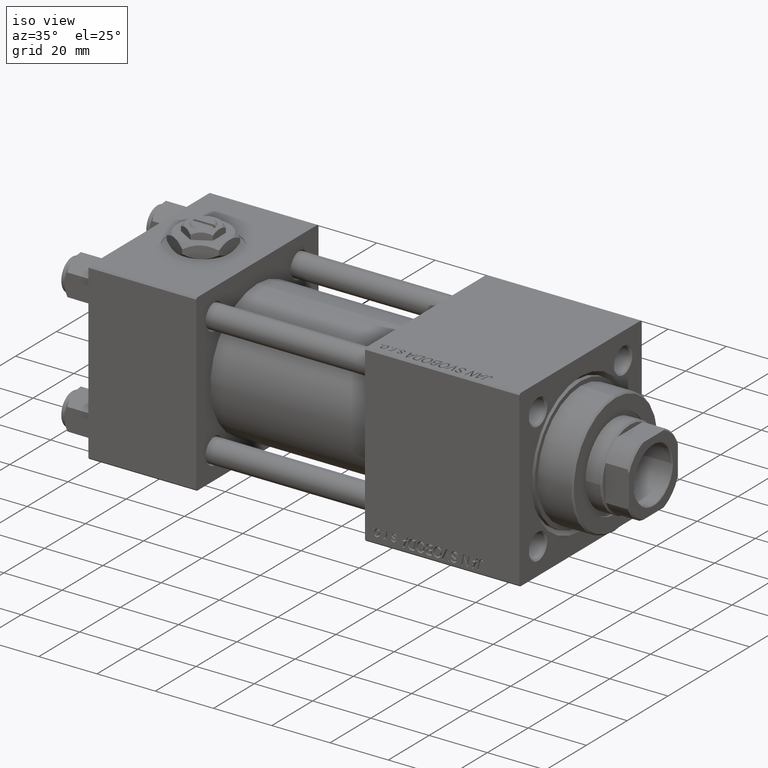
[diagram: clean part render]
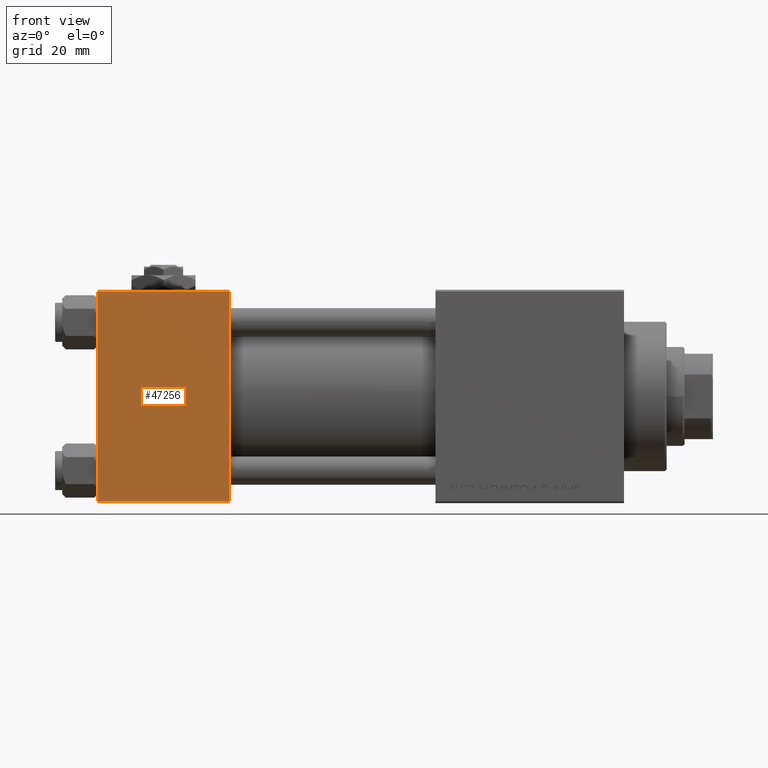
[diagram: tour spotlight — one face highlighted and labeled with its STEP entity id]
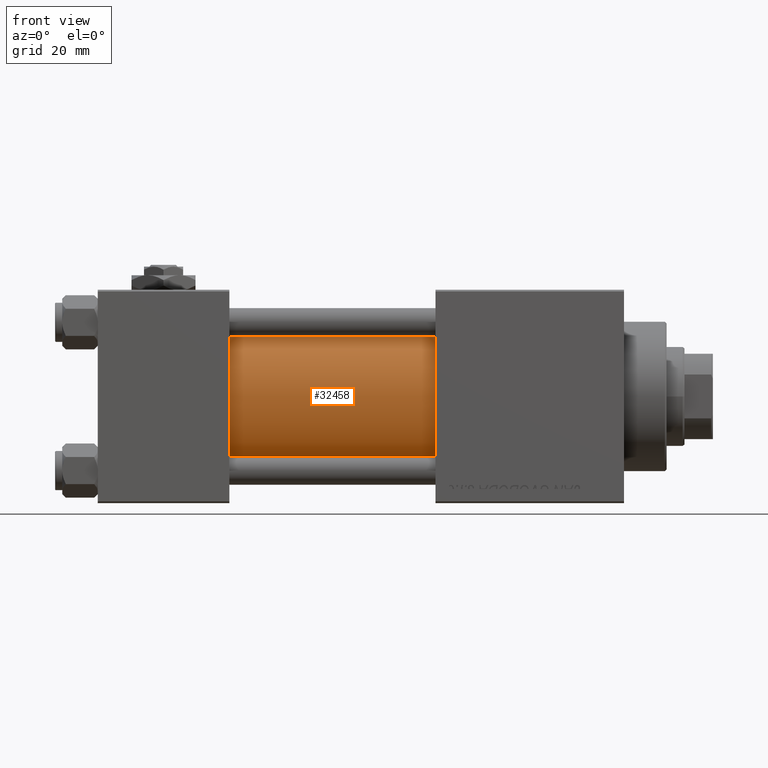
[diagram: tour spotlight — one face highlighted and labeled with its STEP entity id]
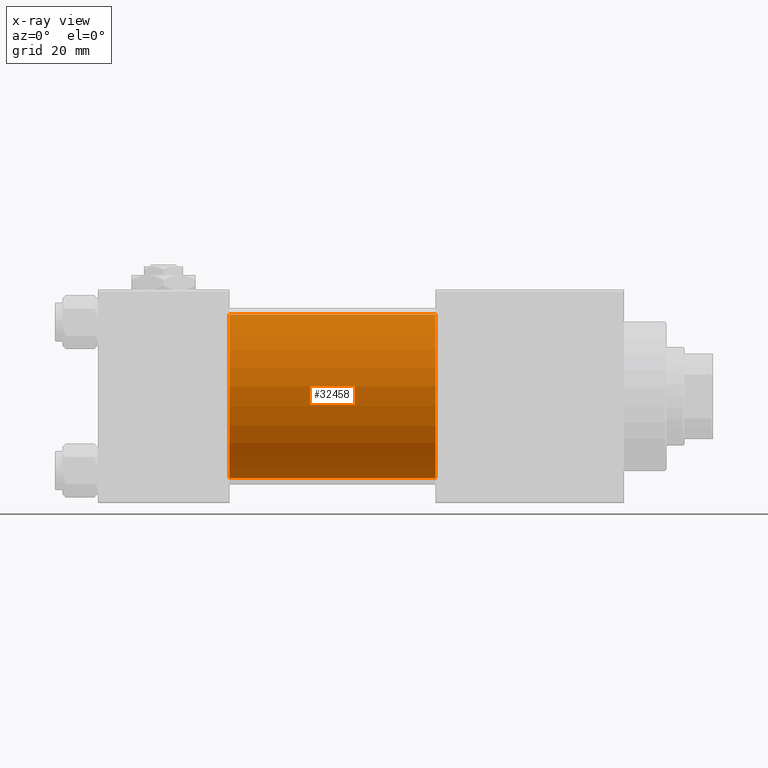
[diagram: x-ray of the same camera — body ghosted, this tour face saturated]
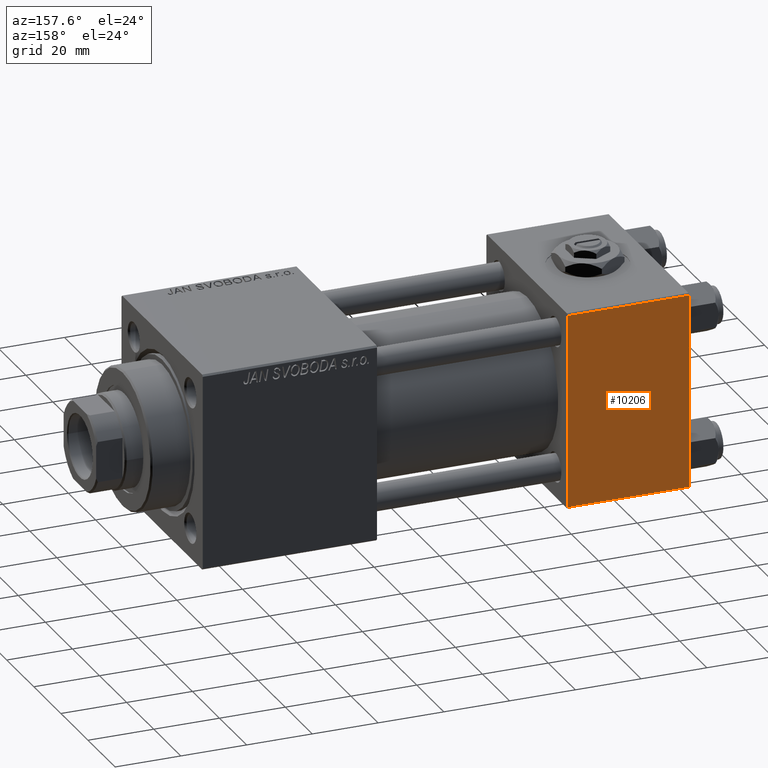
[diagram: tour spotlight — one face highlighted and labeled with its STEP entity id]
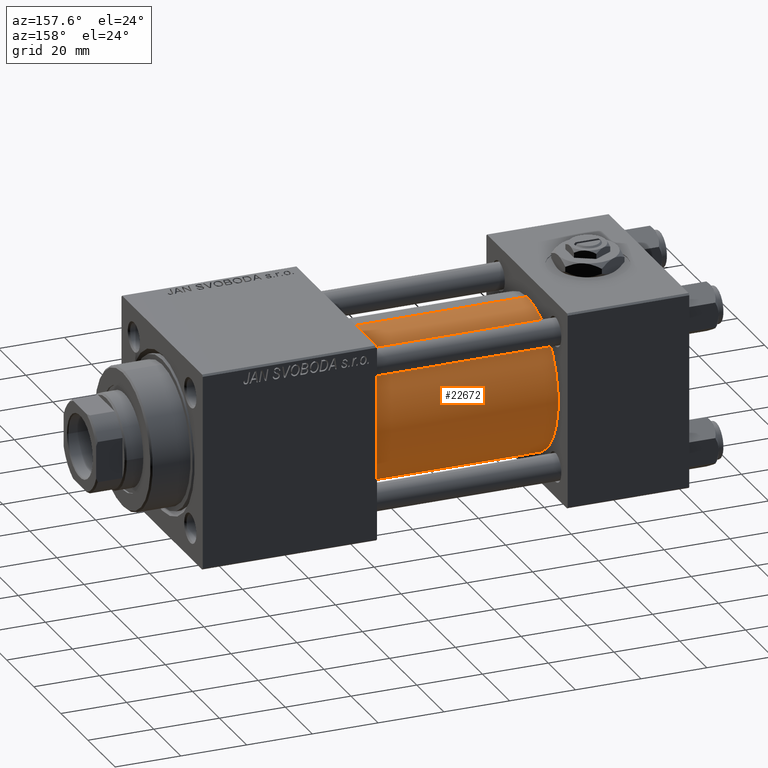
[diagram: tour spotlight — one face highlighted and labeled with its STEP entity id]
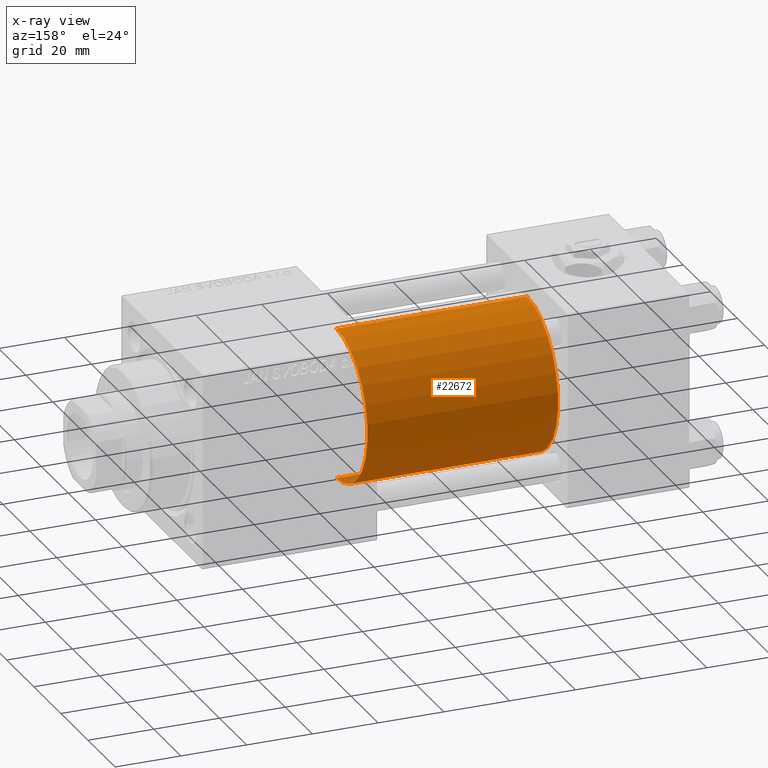
[diagram: x-ray of the same camera — body ghosted, this tour face saturated]
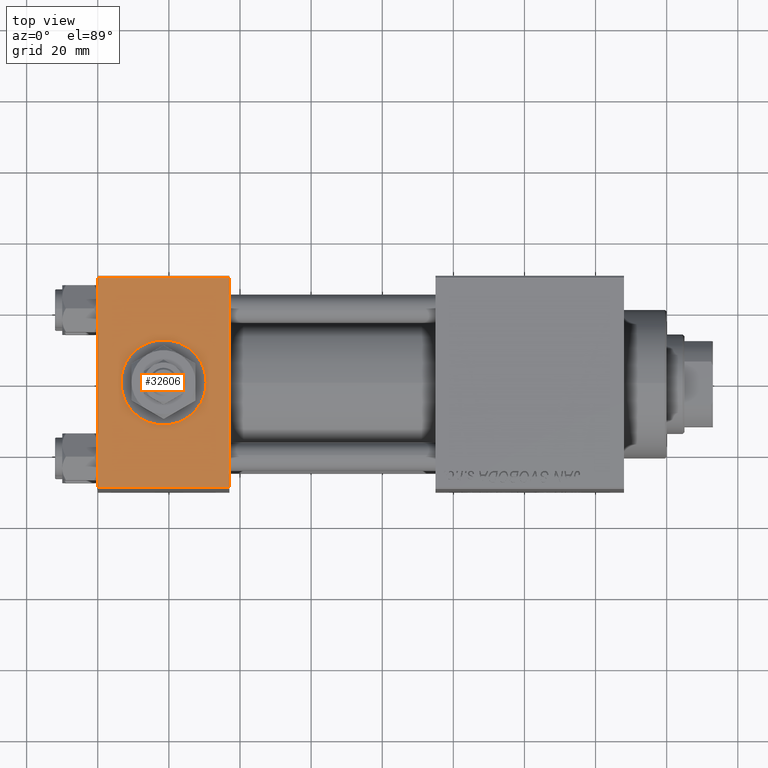
[diagram: tour spotlight — one face highlighted and labeled with its STEP entity id]
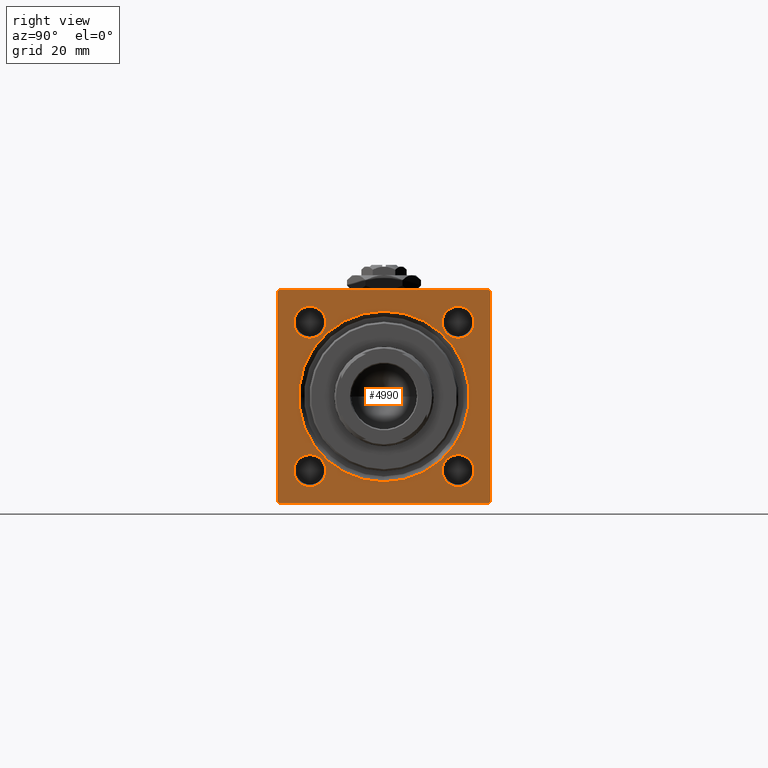
[diagram: tour spotlight — one face highlighted and labeled with its STEP entity id]
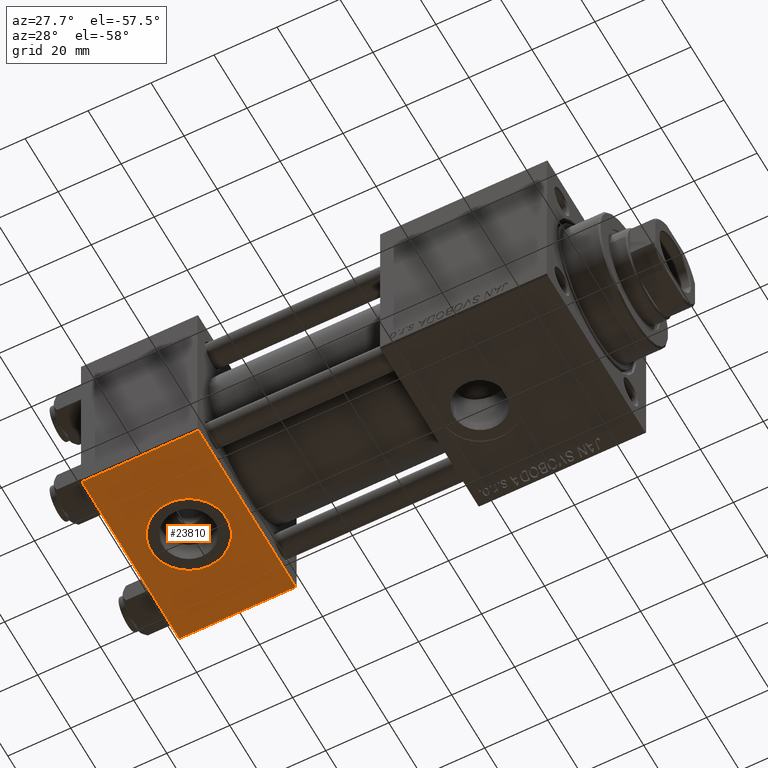
[diagram: tour spotlight — one face highlighted and labeled with its STEP entity id]
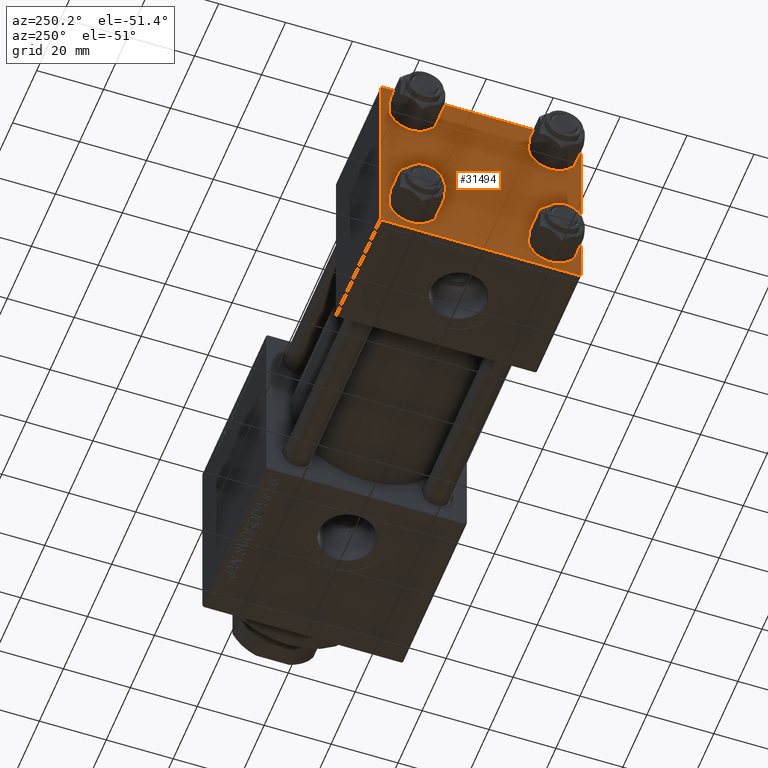
[diagram: tour spotlight — one face highlighted and labeled with its STEP entity id]
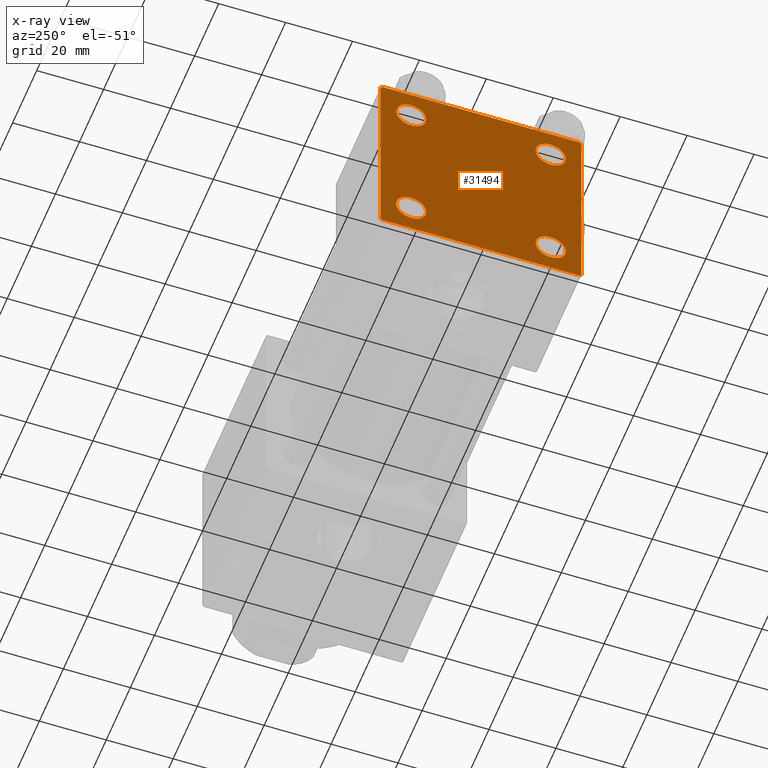
[diagram: x-ray of the same camera — body ghosted, this tour face saturated]
A machine part: a face-by-face anatomy tour. The part has 1202 B-rep faces; the first image is the clean iso view, then the 8 largest visible faces are spotlighted one at a time (largest first), each with its STEP entity span.

Face 1 — front view, entity #47256. In plain terms, the highlighted planar face has unit normal (0, 1, 0).
Definition (entity closure, byte-faithful):
#2697 = VERTEX_POINT ( 'NONE', #44715 ) ;
#3328 = VECTOR ( 'NONE', #31282, 1000.000000000000000 ) ;
#4673 = DIRECTION ( 'NONE',  ( -0.000000000000000000, 1.000000000000000000, 0.000000000000000000 ) ) ;
#4921 = CARTESIAN_POINT ( 'NONE',  ( 37.00000000000000000, -30.00000000000000000, 29.49999999999999289 ) ) ;
#6676 = DIRECTION ( 'NONE',  ( -1.000000000000000000, 0.000000000000000000, 0.000000000000000000 ) ) ;
#8243 = EDGE_CURVE ( 'NONE', #39329, #47542, #31789, .T. ) ;
#8879 = CARTESIAN_POINT ( 'NONE',  ( 37.00000000000000000, -30.00000000000000000, 29.99999999999999289 ) ) ;
#9349 = ORIENTED_EDGE ( 'NONE', *, *, #8243, .T. ) ;
#11387 = DIRECTION ( 'NONE',  ( 0.000000000000000000, 0.000000000000000000, -1.000000000000000000 ) ) ;
#14736 = CARTESIAN_POINT ( 'NONE',  ( 37.00000000000000000, -30.00000000000000000, -29.50000000000001776 ) ) ;
#15338 = CARTESIAN_POINT ( 'NONE',  ( 37.00000000000000000, -30.00000000000000000, 29.99999999999999289 ) ) ;
#15351 = CARTESIAN_POINT ( 'NONE',  ( 0.000000000000000000, -30.00000000000000000, 29.99999999999999289 ) ) ;
#15852 = LINE ( 'NONE', #15351, #33376 ) ;
#18084 = AXIS2_PLACEMENT_3D ( 'NONE', #8879, #4673, #25438 ) ;
#19032 = CARTESIAN_POINT ( 'NONE',  ( 37.00000000000000000, -30.00000000000000000, 29.49999999999999289 ) ) ;
#19642 = ORIENTED_EDGE ( 'NONE', *, *, #51426, .T. ) ;
#20986 = PLANE ( 'NONE',  #18084 ) ;
#23219 = EDGE_CURVE ( 'NONE', #45331, #47542, #35796, .T. ) ;
#25438 = DIRECTION ( 'NONE',  ( 0.000000000000000000, -0.000000000000000000, 1.000000000000000000 ) ) ;
#25693 = FACE_OUTER_BOUND ( 'NONE', #38151, .T. ) ;
#27651 = DIRECTION ( 'NONE',  ( 0.000000000000000000, 0.000000000000000000, -1.000000000000000000 ) ) ;
#28344 = CARTESIAN_POINT ( 'NONE',  ( 37.00000000000000000, -30.00000000000000000, -29.50000000000001776 ) ) ;
#28592 = CARTESIAN_POINT ( 'NONE',  ( 0.000000000000000000, -30.00000000000000000, -29.50000000000001776 ) ) ;
#31108 = LINE ( 'NONE', #19032, #51404 ) ;
#31282 = DIRECTION ( 'NONE',  ( 1.000000000000000000, 0.000000000000000000, 0.000000000000000000 ) ) ;
#31789 = LINE ( 'NONE', #28344, #3328 ) ;
#32348 = VECTOR ( 'NONE', #27651, 1000.000000000000000 ) ;
#33376 = VECTOR ( 'NONE', #11387, 1000.000000000000000 ) ;
#35796 = LINE ( 'NONE', #15338, #32348 ) ;
#38151 = EDGE_LOOP ( 'NONE', ( #19642, #9349, #42689, #41987 ) ) ;
#39329 = VERTEX_POINT ( 'NONE', #28592 ) ;
#41987 = ORIENTED_EDGE ( 'NONE', *, *, #43721, .T. ) ;
#42689 = ORIENTED_EDGE ( 'NONE', *, *, #23219, .F. ) ;
#43721 = EDGE_CURVE ( 'NONE', #45331, #2697, #31108, .T. ) ;
#44715 = CARTESIAN_POINT ( 'NONE',  ( 0.000000000000000000, -30.00000000000000000, 29.49999999999999289 ) ) ;
#45331 = VERTEX_POINT ( 'NONE', #4921 ) ;
#47256 = ADVANCED_FACE ( 'NONE', ( #25693 ), #20986, .F. ) ;
#47542 = VERTEX_POINT ( 'NONE', #14736 ) ;
#51404 = VECTOR ( 'NONE', #6676, 1000.000000000000000 ) ;
#51426 = EDGE_CURVE ( 'NONE', #2697, #39329, #15852, .T. ) ;

Face 2 — front view, entity #32458. An x-ray twin of the same camera follows (body ghosted, this face saturated) — the face is partly hidden behind the body. In plain terms, the highlighted cylindrical surface (partial cylindrical patch) has radius 23 mm, axis along (-1, -0, -0).
Definition (entity closure, byte-faithful):
#10 = CARTESIAN_POINT ( 'NONE',  ( 37.00000000000000000, -2.602085213965210642E-15, 23.00000000000000000 ) ) ;
#204 = DIRECTION ( 'NONE',  ( 0.000000000000000000, 0.000000000000000000, 1.000000000000000000 ) ) ;
#270 = CARTESIAN_POINT ( 'NONE',  ( 95.00000000000000000, -2.602085213965210642E-15, 0.000000000000000000 ) ) ;
#1052 = AXIS2_PLACEMENT_3D ( 'NONE', #270, #16315, #32324 ) ;
#3303 = EDGE_LOOP ( 'NONE', ( #32856, #15043, #27550, #34948 ) ) ;
#4272 = EDGE_CURVE ( 'NONE', #8535, #21367, #51133, .T. ) ;
#7165 = CARTESIAN_POINT ( 'NONE',  ( 37.00000000000000000, -2.602085213965210642E-15, 0.000000000000000000 ) ) ;
#8535 = VERTEX_POINT ( 'NONE', #10740 ) ;
#9974 = AXIS2_PLACEMENT_3D ( 'NONE', #7165, #11893, #44193 ) ;
#10393 = VERTEX_POINT ( 'NONE', #10 ) ;
#10740 = CARTESIAN_POINT ( 'NONE',  ( 95.00000000000000000, 2.146024240737012665E-16, -23.00000000000000000 ) ) ;
#11451 = CARTESIAN_POINT ( 'NONE',  ( 95.00000000000000000, 2.146024240737012665E-16, -23.00000000000000000 ) ) ;
#11893 = DIRECTION ( 'NONE',  ( 1.000000000000000000, -0.000000000000000000, 0.000000000000000000 ) ) ;
#14548 = EDGE_CURVE ( 'NONE', #37056, #10393, #24505, .T. ) ;
#15043 = ORIENTED_EDGE ( 'NONE', *, *, #44176, .F. ) ;
#16315 = DIRECTION ( 'NONE',  ( 1.000000000000000000, 0.000000000000000000, 0.000000000000000000 ) ) ;
#16495 = CYLINDRICAL_SURFACE ( 'NONE', #27658, 23.00000000000000000 ) ;
#16766 = CARTESIAN_POINT ( 'NONE',  ( 95.00000000000000000, -2.602085213965210642E-15, 0.000000000000000000 ) ) ;
#17486 = VECTOR ( 'NONE', #34853, 1000.000000000000000 ) ;
#20883 = CIRCLE ( 'NONE', #9974, 23.00000000000000000 ) ;
#21367 = VERTEX_POINT ( 'NONE', #46652 ) ;
#24505 = LINE ( 'NONE', #36051, #36955 ) ;
#27550 = ORIENTED_EDGE ( 'NONE', *, *, #14548, .T. ) ;
#27658 = AXIS2_PLACEMENT_3D ( 'NONE', #16766, #45122, #204 ) ;
#28302 = FACE_OUTER_BOUND ( 'NONE', #3303, .T. ) ;
#31144 = EDGE_CURVE ( 'NONE', #10393, #21367, #20883, .T. ) ;
#32324 = DIRECTION ( 'NONE',  ( 0.000000000000000000, 0.000000000000000000, -1.000000000000000000 ) ) ;
#32458 = ADVANCED_FACE ( 'NONE', ( #28302 ), #16495, .T. ) ;
#32856 = ORIENTED_EDGE ( 'NONE', *, *, #4272, .F. ) ;
#34853 = DIRECTION ( 'NONE',  ( -1.000000000000000000, -0.000000000000000000, -0.000000000000000000 ) ) ;
#34948 = ORIENTED_EDGE ( 'NONE', *, *, #31144, .T. ) ;
#36051 = CARTESIAN_POINT ( 'NONE',  ( 95.00000000000000000, -2.602085213965210642E-15, 23.00000000000000000 ) ) ;
#36955 = VECTOR ( 'NONE', #44196, 1000.000000000000000 ) ;
#37056 = VERTEX_POINT ( 'NONE', #50220 ) ;
#44176 = EDGE_CURVE ( 'NONE', #37056, #8535, #45545, .T. ) ;
#44193 = DIRECTION ( 'NONE',  ( 0.000000000000000000, 0.000000000000000000, 1.000000000000000000 ) ) ;
#44196 = DIRECTION ( 'NONE',  ( -1.000000000000000000, -0.000000000000000000, -0.000000000000000000 ) ) ;
#45122 = DIRECTION ( 'NONE',  ( -1.000000000000000000, -0.000000000000000000, -0.000000000000000000 ) ) ;
#45545 = CIRCLE ( 'NONE', #1052, 23.00000000000000000 ) ;
#46652 = CARTESIAN_POINT ( 'NONE',  ( 37.00000000000000000, 2.146024240737012665E-16, -23.00000000000000000 ) ) ;
#50220 = CARTESIAN_POINT ( 'NONE',  ( 95.00000000000000000, -2.602085213965210642E-15, 23.00000000000000000 ) ) ;
#51133 = LINE ( 'NONE', #11451, #17486 ) ;

Face 3 — auxiliary view, entity #10206. In plain terms, the highlighted planar face has unit normal (0, 1, 0).
Definition (entity closure, byte-faithful):
#1888 = FACE_OUTER_BOUND ( 'NONE', #19308, .T. ) ;
#2144 = DIRECTION ( 'NONE',  ( -0.000000000000000000, 1.000000000000000000, 0.000000000000000000 ) ) ;
#3708 = VERTEX_POINT ( 'NONE', #18961 ) ;
#4441 = CARTESIAN_POINT ( 'NONE',  ( 37.00000000000000000, 29.99999999999999289, 30.00000000000000000 ) ) ;
#8498 = VERTEX_POINT ( 'NONE', #42277 ) ;
#9741 = VECTOR ( 'NONE', #37808, 1000.000000000000000 ) ;
#9892 = VECTOR ( 'NONE', #47361, 1000.000000000000000 ) ;
#10130 = AXIS2_PLACEMENT_3D ( 'NONE', #41839, #2144, #13981 ) ;
#10206 = ADVANCED_FACE ( 'NONE', ( #1888 ), #13469, .T. ) ;
#12780 = CARTESIAN_POINT ( 'NONE',  ( 37.00000000000000000, 29.99999999999999289, -29.50000000000000000 ) ) ;
#13469 = PLANE ( 'NONE',  #10130 ) ;
#13810 = ORIENTED_EDGE ( 'NONE', *, *, #24584, .T. ) ;
#13981 = DIRECTION ( 'NONE',  ( 0.000000000000000000, -0.000000000000000000, 1.000000000000000000 ) ) ;
#16570 = ORIENTED_EDGE ( 'NONE', *, *, #28363, .F. ) ;
#16901 = EDGE_CURVE ( 'NONE', #33563, #8498, #33239, .T. ) ;
#16985 = DIRECTION ( 'NONE',  ( -1.000000000000000000, 0.000000000000000000, 0.000000000000000000 ) ) ;
#17778 = VECTOR ( 'NONE', #16985, 1000.000000000000000 ) ;
#18961 = CARTESIAN_POINT ( 'NONE',  ( 0.000000000000000000, 29.99999999999999289, 29.50000000000000000 ) ) ;
#19308 = EDGE_LOOP ( 'NONE', ( #29512, #39197, #16570, #13810 ) ) ;
#21907 = CARTESIAN_POINT ( 'NONE',  ( 0.000000000000000000, 29.99999999999999289, 30.00000000000000000 ) ) ;
#24584 = EDGE_CURVE ( 'NONE', #3708, #34859, #50424, .T. ) ;
#27131 = LINE ( 'NONE', #21907, #9892 ) ;
#28363 = EDGE_CURVE ( 'NONE', #3708, #8498, #27131, .T. ) ;
#29512 = ORIENTED_EDGE ( 'NONE', *, *, #41549, .T. ) ;
#30368 = VECTOR ( 'NONE', #40698, 1000.000000000000000 ) ;
#33239 = LINE ( 'NONE', #12780, #17778 ) ;
#33563 = VERTEX_POINT ( 'NONE', #49535 ) ;
#34859 = VERTEX_POINT ( 'NONE', #41859 ) ;
#37808 = DIRECTION ( 'NONE',  ( 1.000000000000000000, 0.000000000000000000, 0.000000000000000000 ) ) ;
#39197 = ORIENTED_EDGE ( 'NONE', *, *, #16901, .T. ) ;
#40698 = DIRECTION ( 'NONE',  ( 0.000000000000000000, 0.000000000000000000, -1.000000000000000000 ) ) ;
#41549 = EDGE_CURVE ( 'NONE', #34859, #33563, #44383, .T. ) ;
#41839 = CARTESIAN_POINT ( 'NONE',  ( 37.00000000000000000, 29.99999999999999289, 30.00000000000000000 ) ) ;
#41859 = CARTESIAN_POINT ( 'NONE',  ( 37.00000000000000000, 29.99999999999999289, 29.50000000000000000 ) ) ;
#42277 = CARTESIAN_POINT ( 'NONE',  ( 0.000000000000000000, 29.99999999999999289, -29.50000000000000000 ) ) ;
#42285 = CARTESIAN_POINT ( 'NONE',  ( 37.00000000000000000, 29.99999999999999289, 29.50000000000000000 ) ) ;
#44383 = LINE ( 'NONE', #4441, #30368 ) ;
#47361 = DIRECTION ( 'NONE',  ( 0.000000000000000000, 0.000000000000000000, -1.000000000000000000 ) ) ;
#49535 = CARTESIAN_POINT ( 'NONE',  ( 37.00000000000000000, 29.99999999999999289, -29.50000000000000000 ) ) ;
#50424 = LINE ( 'NONE', #42285, #9741 ) ;

Face 4 — auxiliary view, entity #22672. An x-ray twin of the same camera follows (body ghosted, this face saturated) — the face is partly hidden behind the body. In plain terms, the highlighted cylindrical surface (partial cylindrical patch) has radius 23 mm, axis along (-1, -0, -0).
Definition (entity closure, byte-faithful):
#10 = CARTESIAN_POINT ( 'NONE',  ( 37.00000000000000000, -2.602085213965210642E-15, 23.00000000000000000 ) ) ;
#1264 = CYLINDRICAL_SURFACE ( 'NONE', #16501, 23.00000000000000000 ) ;
#4272 = EDGE_CURVE ( 'NONE', #8535, #21367, #51133, .T. ) ;
#4637 = DIRECTION ( 'NONE',  ( 1.000000000000000000, 0.000000000000000000, 0.000000000000000000 ) ) ;
#8535 = VERTEX_POINT ( 'NONE', #10740 ) ;
#10393 = VERTEX_POINT ( 'NONE', #10 ) ;
#10740 = CARTESIAN_POINT ( 'NONE',  ( 95.00000000000000000, 2.146024240737012665E-16, -23.00000000000000000 ) ) ;
#11451 = CARTESIAN_POINT ( 'NONE',  ( 95.00000000000000000, 2.146024240737012665E-16, -23.00000000000000000 ) ) ;
#11842 = CIRCLE ( 'NONE', #18569, 23.00000000000000000 ) ;
#12534 = ORIENTED_EDGE ( 'NONE', *, *, #42716, .F. ) ;
#13468 = ORIENTED_EDGE ( 'NONE', *, *, #39580, .T. ) ;
#14548 = EDGE_CURVE ( 'NONE', #37056, #10393, #24505, .T. ) ;
#16228 = CARTESIAN_POINT ( 'NONE',  ( 95.00000000000000000, -2.602085213965210642E-15, 0.000000000000000000 ) ) ;
#16501 = AXIS2_PLACEMENT_3D ( 'NONE', #32556, #20737, #33068 ) ;
#16782 = EDGE_LOOP ( 'NONE', ( #12534, #42515, #13468, #42737 ) ) ;
#17316 = FACE_OUTER_BOUND ( 'NONE', #16782, .T. ) ;
#17486 = VECTOR ( 'NONE', #34853, 1000.000000000000000 ) ;
#18569 = AXIS2_PLACEMENT_3D ( 'NONE', #39077, #19885, #19635 ) ;
#19635 = DIRECTION ( 'NONE',  ( 0.000000000000000000, 0.000000000000000000, 1.000000000000000000 ) ) ;
#19885 = DIRECTION ( 'NONE',  ( 1.000000000000000000, -0.000000000000000000, 0.000000000000000000 ) ) ;
#20737 = DIRECTION ( 'NONE',  ( -1.000000000000000000, -0.000000000000000000, -0.000000000000000000 ) ) ;
#21367 = VERTEX_POINT ( 'NONE', #46652 ) ;
#22672 = ADVANCED_FACE ( 'NONE', ( #17316 ), #1264, .T. ) ;
#23708 = AXIS2_PLACEMENT_3D ( 'NONE', #16228, #4637, #40392 ) ;
#24505 = LINE ( 'NONE', #36051, #36955 ) ;
#32556 = CARTESIAN_POINT ( 'NONE',  ( 95.00000000000000000, -2.602085213965210642E-15, 0.000000000000000000 ) ) ;
#33068 = DIRECTION ( 'NONE',  ( 0.000000000000000000, 0.000000000000000000, 1.000000000000000000 ) ) ;
#34853 = DIRECTION ( 'NONE',  ( -1.000000000000000000, -0.000000000000000000, -0.000000000000000000 ) ) ;
#36051 = CARTESIAN_POINT ( 'NONE',  ( 95.00000000000000000, -2.602085213965210642E-15, 23.00000000000000000 ) ) ;
#36955 = VECTOR ( 'NONE', #44196, 1000.000000000000000 ) ;
#37056 = VERTEX_POINT ( 'NONE', #50220 ) ;
#39077 = CARTESIAN_POINT ( 'NONE',  ( 37.00000000000000000, -2.602085213965210642E-15, 0.000000000000000000 ) ) ;
#39580 = EDGE_CURVE ( 'NONE', #21367, #10393, #11842, .T. ) ;
#40392 = DIRECTION ( 'NONE',  ( 0.000000000000000000, 0.000000000000000000, -1.000000000000000000 ) ) ;
#42515 = ORIENTED_EDGE ( 'NONE', *, *, #4272, .T. ) ;
#42716 = EDGE_CURVE ( 'NONE', #8535, #37056, #46349, .T. ) ;
#42737 = ORIENTED_EDGE ( 'NONE', *, *, #14548, .F. ) ;
#44196 = DIRECTION ( 'NONE',  ( -1.000000000000000000, -0.000000000000000000, -0.000000000000000000 ) ) ;
#46349 = CIRCLE ( 'NONE', #23708, 23.00000000000000000 ) ;
#46652 = CARTESIAN_POINT ( 'NONE',  ( 37.00000000000000000, 2.146024240737012665E-16, -23.00000000000000000 ) ) ;
#50220 = CARTESIAN_POINT ( 'NONE',  ( 95.00000000000000000, -2.602085213965210642E-15, 23.00000000000000000 ) ) ;
#51133 = LINE ( 'NONE', #11451, #17486 ) ;

Face 5 — top view, entity #32606. In plain terms, the highlighted planar face has unit normal (0, 0, -1).
Definition (entity closure, byte-faithful):
#323 = VERTEX_POINT ( 'NONE', #13905 ) ;
#3271 = EDGE_CURVE ( 'NONE', #323, #20373, #7813, .T. ) ;
#3861 = CARTESIAN_POINT ( 'NONE',  ( 37.00000000000000000, -29.50000000000000000, 29.99999999999999289 ) ) ;
#5090 = DIRECTION ( 'NONE',  ( 0.000000000000000000, 0.000000000000000000, 1.000000000000000000 ) ) ;
#5511 = DIRECTION ( 'NONE',  ( -1.000000000000000000, 0.000000000000000000, 0.000000000000000000 ) ) ;
#5994 = VECTOR ( 'NONE', #13666, 1000.000000000000000 ) ;
#7813 = LINE ( 'NONE', #3861, #29169 ) ;
#9829 = DIRECTION ( 'NONE',  ( 1.000000000000000000, 0.000000000000000000, 0.000000000000000000 ) ) ;
#10569 = ORIENTED_EDGE ( 'NONE', *, *, #51218, .F. ) ;
#10608 = DIRECTION ( 'NONE',  ( 0.000000000000000000, -1.000000000000000000, -1.156482317317871725E-16 ) ) ;
#11530 = VERTEX_POINT ( 'NONE', #25139 ) ;
#12778 = EDGE_CURVE ( 'NONE', #47284, #20373, #14565, .T. ) ;
#13507 = DIRECTION ( 'NONE',  ( 1.000000000000000000, 0.000000000000000000, 0.000000000000000000 ) ) ;
#13666 = DIRECTION ( 'NONE',  ( 0.000000000000000000, -1.000000000000000000, -1.156482317317871725E-16 ) ) ;
#13905 = CARTESIAN_POINT ( 'NONE',  ( 0.000000000000000000, -29.49999999999998579, 29.99999999999999289 ) ) ;
#14253 = ORIENTED_EDGE ( 'NONE', *, *, #15890, .T. ) ;
#14565 = LINE ( 'NONE', #30580, #50519 ) ;
#15890 = EDGE_CURVE ( 'NONE', #11530, #323, #33093, .T. ) ;
#16185 = PLANE ( 'NONE',  #51152 ) ;
#16670 = CARTESIAN_POINT ( 'NONE',  ( 18.50000000000000000, -3.469446951953614978E-15, 29.99999999999999645 ) ) ;
#17044 = CARTESIAN_POINT ( 'NONE',  ( 37.00000000000000000, 29.49999999999999289, 30.00000000000000000 ) ) ;
#19958 = AXIS2_PLACEMENT_3D ( 'NONE', #49244, #29013, #9829 ) ;
#20373 = VERTEX_POINT ( 'NONE', #36935 ) ;
#21571 = EDGE_CURVE ( 'NONE', #45601, #38941, #50851, .T. ) ;
#22141 = EDGE_LOOP ( 'NONE', ( #14253, #24503, #33690, #34028 ) ) ;
#24503 = ORIENTED_EDGE ( 'NONE', *, *, #3271, .T. ) ;
#25139 = CARTESIAN_POINT ( 'NONE',  ( 0.000000000000000000, 29.49999999999999289, 30.00000000000000000 ) ) ;
#25634 = ORIENTED_EDGE ( 'NONE', *, *, #21571, .F. ) ;
#26758 = DIRECTION ( 'NONE',  ( 1.000000000000000000, 0.000000000000000000, 0.000000000000000000 ) ) ;
#27106 = VECTOR ( 'NONE', #5511, 1000.000000000000000 ) ;
#28386 = EDGE_LOOP ( 'NONE', ( #10569, #25634 ) ) ;
#28772 = FACE_BOUND ( 'NONE', #28386, .T. ) ;
#29013 = DIRECTION ( 'NONE',  ( 0.000000000000000000, 0.000000000000000000, 1.000000000000000000 ) ) ;
#29169 = VECTOR ( 'NONE', #26758, 1000.000000000000000 ) ;
#30580 = CARTESIAN_POINT ( 'NONE',  ( 37.00000000000000000, 29.99999999999999289, 30.00000000000000000 ) ) ;
#32606 = ADVANCED_FACE ( 'NONE', ( #28772, #40343 ), #16185, .F. ) ;
#33093 = LINE ( 'NONE', #42302, #5994 ) ;
#33361 = CARTESIAN_POINT ( 'NONE',  ( 30.50000000000000000, -3.469446951953614978E-15, 29.99999999999999645 ) ) ;
#33690 = ORIENTED_EDGE ( 'NONE', *, *, #12778, .F. ) ;
#34028 = ORIENTED_EDGE ( 'NONE', *, *, #44327, .T. ) ;
#36738 = CIRCLE ( 'NONE', #19958, 12.00000000000000000 ) ;
#36935 = CARTESIAN_POINT ( 'NONE',  ( 37.00000000000000000, -29.49999999999998579, 29.99999999999999289 ) ) ;
#37556 = LINE ( 'NONE', #45197, #27106 ) ;
#38941 = VERTEX_POINT ( 'NONE', #33361 ) ;
#40077 = DIRECTION ( 'NONE',  ( 0.000000000000000000, 1.000000000000000000, 1.156482317317871725E-16 ) ) ;
#40343 = FACE_OUTER_BOUND ( 'NONE', #22141, .T. ) ;
#42302 = CARTESIAN_POINT ( 'NONE',  ( 0.000000000000000000, 29.99999999999999289, 30.00000000000000000 ) ) ;
#43010 = CARTESIAN_POINT ( 'NONE',  ( 6.499999999999997335, -1.999870792976790833E-15, 29.99999999999999645 ) ) ;
#44327 = EDGE_CURVE ( 'NONE', #47284, #11530, #37556, .T. ) ;
#45197 = CARTESIAN_POINT ( 'NONE',  ( 0.000000000000000000, 29.49999999999999289, 30.00000000000000000 ) ) ;
#45601 = VERTEX_POINT ( 'NONE', #43010 ) ;
#46695 = AXIS2_PLACEMENT_3D ( 'NONE', #16670, #5090, #13507 ) ;
#47284 = VERTEX_POINT ( 'NONE', #17044 ) ;
#47974 = CARTESIAN_POINT ( 'NONE',  ( 37.00000000000000000, 29.99999999999999289, 30.00000000000000000 ) ) ;
#48480 = DIRECTION ( 'NONE',  ( 0.000000000000000000, 1.156482317317871725E-16, -1.000000000000000000 ) ) ;
#49244 = CARTESIAN_POINT ( 'NONE',  ( 18.50000000000000000, -3.469446951953614978E-15, 29.99999999999999645 ) ) ;
#50519 = VECTOR ( 'NONE', #10608, 1000.000000000000000 ) ;
#50851 = CIRCLE ( 'NONE', #46695, 12.00000000000000000 ) ;
#51152 = AXIS2_PLACEMENT_3D ( 'NONE', #47974, #48480, #40077 ) ;
#51218 = EDGE_CURVE ( 'NONE', #38941, #45601, #36738, .T. ) ;

Face 6 — right view, entity #4990. In plain terms, the highlighted planar face has unit normal (-1, 0, 0).
Definition (entity closure, byte-faithful):
#394 = CARTESIAN_POINT ( 'NONE',  ( 148.0000000000000000, 29.50000000000000000, -29.99999999999999289 ) ) ;
#400 = CARTESIAN_POINT ( 'NONE',  ( 148.0000000000000000, 30.00000000000000000, 29.50000000000000000 ) ) ;
#1325 = CIRCLE ( 'NONE', #37406, 4.500000000000017764 ) ;
#1987 = VECTOR ( 'NONE', #42850, 1000.000000000000000 ) ;
#2019 = CARTESIAN_POINT ( 'NONE',  ( 148.0000000000000000, -20.85000000000000142, -16.34999999999998366 ) ) ;
#2108 = DIRECTION ( 'NONE',  ( 0.000000000000000000, 0.000000000000000000, 1.000000000000000000 ) ) ;
#2255 = CARTESIAN_POINT ( 'NONE',  ( 148.0000000000000000, -20.84999999999999432, 16.34999999999998366 ) ) ;
#2894 = CARTESIAN_POINT ( 'NONE',  ( 148.0000000000000000, -30.00000000000000000, 29.99999999999999289 ) ) ;
#3234 = CARTESIAN_POINT ( 'NONE',  ( 148.0000000000000000, -20.84999999999999432, 20.85000000000000142 ) ) ;
#3436 = EDGE_CURVE ( 'NONE', #20534, #8976, #48442, .T. ) ;
#3653 = CIRCLE ( 'NONE', #39735, 4.500000000000017764 ) ;
#4248 = CIRCLE ( 'NONE', #37787, 4.500000000000017764 ) ;
#4885 = LINE ( 'NONE', #5672, #25650 ) ;
#4990 = ADVANCED_FACE ( 'NONE', ( #13084, #12298, #32778, #28836, #45126, #12570 ), #24656, .F. ) ;
#5400 = EDGE_LOOP ( 'NONE', ( #32850, #17895 ) ) ;
#5407 = DIRECTION ( 'NONE',  ( 0.000000000000000000, -1.000000000000000000, -1.156482317317871478E-16 ) ) ;
#5571 = VECTOR ( 'NONE', #41691, 1000.000000000000114 ) ;
#5573 = EDGE_CURVE ( 'NONE', #12320, #45464, #49394, .T. ) ;
#5625 = CARTESIAN_POINT ( 'NONE',  ( 148.0000000000000000, -29.50000000000000000, 29.99999999999999289 ) ) ;
#5672 = CARTESIAN_POINT ( 'NONE',  ( 148.0000000000000000, 30.00000000000000000, 30.00000000000000000 ) ) ;
#6678 = DIRECTION ( 'NONE',  ( -1.000000000000000000, 0.000000000000000000, -0.000000000000000000 ) ) ;
#7712 = AXIS2_PLACEMENT_3D ( 'NONE', #15357, #6678, #47646 ) ;
#7756 = VERTEX_POINT ( 'NONE', #44130 ) ;
#7832 = EDGE_CURVE ( 'NONE', #27103, #46036, #8910, .T. ) ;
#8910 = LINE ( 'NONE', #24950, #31830 ) ;
#8932 = ORIENTED_EDGE ( 'NONE', *, *, #46592, .T. ) ;
#8976 = VERTEX_POINT ( 'NONE', #2255 ) ;
#8996 = CARTESIAN_POINT ( 'NONE',  ( 148.0000000000000000, -29.50000000000000000, -30.00000000000000000 ) ) ;
#9133 = DIRECTION ( 'NONE',  ( -0.000000000000000000, 0.000000000000000000, 1.000000000000000000 ) ) ;
#9212 = AXIS2_PLACEMENT_3D ( 'NONE', #31088, #43171, #50792 ) ;
#9981 = AXIS2_PLACEMENT_3D ( 'NONE', #26666, #26161, #18802 ) ;
#10902 = CARTESIAN_POINT ( 'NONE',  ( 148.0000000000000000, 20.84999999999999787, -20.85000000000000142 ) ) ;
#11034 = ORIENTED_EDGE ( 'NONE', *, *, #47235, .T. ) ;
#11744 = EDGE_LOOP ( 'NONE', ( #46201, #35967 ) ) ;
#11882 = CIRCLE ( 'NONE', #7712, 4.500000000000017764 ) ;
#12151 = DIRECTION ( 'NONE',  ( -1.000000000000000000, 0.000000000000000000, -0.000000000000000000 ) ) ;
#12298 = FACE_BOUND ( 'NONE', #43440, .T. ) ;
#12320 = VERTEX_POINT ( 'NONE', #25926 ) ;
#12570 = FACE_OUTER_BOUND ( 'NONE', #41377, .T. ) ;
#12733 = CARTESIAN_POINT ( 'NONE',  ( 148.0000000000000000, 0.000000000000000000, 0.000000000000000000 ) ) ;
#13084 = FACE_BOUND ( 'NONE', #11744, .T. ) ;
#13160 = VECTOR ( 'NONE', #22341, 1000.000000000000000 ) ;
#13349 = EDGE_CURVE ( 'NONE', #47385, #7756, #11882, .T. ) ;
#13611 = VECTOR ( 'NONE', #34034, 1000.000000000000114 ) ;
#15178 = VERTEX_POINT ( 'NONE', #5625 ) ;
#15357 = CARTESIAN_POINT ( 'NONE',  ( 148.0000000000000000, 20.84999999999999787, 20.85000000000000142 ) ) ;
#15386 = DIRECTION ( 'NONE',  ( 0.000000000000000000, 0.000000000000000000, 1.000000000000000000 ) ) ;
#15709 = CARTESIAN_POINT ( 'NONE',  ( 148.0000000000000000, 20.84999999999999787, -25.35000000000001918 ) ) ;
#16549 = DIRECTION ( 'NONE',  ( 0.000000000000000000, -1.000000000000000000, -1.156482317317871478E-16 ) ) ;
#17553 = EDGE_LOOP ( 'NONE', ( #50716, #47221 ) ) ;
#17895 = ORIENTED_EDGE ( 'NONE', *, *, #36642, .T. ) ;
#17937 = ORIENTED_EDGE ( 'NONE', *, *, #26464, .F. ) ;
#18016 = EDGE_CURVE ( 'NONE', #33558, #46813, #51104, .T. ) ;
#18023 = CARTESIAN_POINT ( 'NONE',  ( 148.0000000000000000, 29.50000000000000000, 30.00000000000000000 ) ) ;
#18533 = EDGE_CURVE ( 'NONE', #48892, #45319, #47547, .T. ) ;
#18802 = DIRECTION ( 'NONE',  ( 0.000000000000000000, 0.000000000000000000, 1.000000000000000000 ) ) ;
#20095 = DIRECTION ( 'NONE',  ( 0.000000000000000000, 0.000000000000000000, 1.000000000000000000 ) ) ;
#20352 = EDGE_CURVE ( 'NONE', #46813, #15178, #4885, .T. ) ;
#20534 = VERTEX_POINT ( 'NONE', #24027 ) ;
#20848 = AXIS2_PLACEMENT_3D ( 'NONE', #37231, #48813, #9133 ) ;
#21452 = CARTESIAN_POINT ( 'NONE',  ( 148.0000000000000000, -20.84999999999999432, 20.85000000000000142 ) ) ;
#21530 = CIRCLE ( 'NONE', #43353, 4.500000000000017764 ) ;
#21719 = DIRECTION ( 'NONE',  ( -1.000000000000000000, 0.000000000000000000, -0.000000000000000000 ) ) ;
#21754 = EDGE_CURVE ( 'NONE', #8976, #20534, #1325, .T. ) ;
#22023 = EDGE_CURVE ( 'NONE', #45464, #12320, #21530, .T. ) ;
#22248 = LINE ( 'NONE', #38974, #5571 ) ;
#22341 = DIRECTION ( 'NONE',  ( 0.000000000000000000, 0.000000000000000000, -1.000000000000000000 ) ) ;
#23288 = VERTEX_POINT ( 'NONE', #29730 ) ;
#23481 = DIRECTION ( 'NONE',  ( 0.000000000000000000, 0.000000000000000000, 1.000000000000000000 ) ) ;
#23650 = CARTESIAN_POINT ( 'NONE',  ( 148.0000000000000000, 30.00000000000000000, -29.49999999999999289 ) ) ;
#24008 = VERTEX_POINT ( 'NONE', #35364 ) ;
#24027 = CARTESIAN_POINT ( 'NONE',  ( 148.0000000000000000, -20.84999999999999432, 25.35000000000001918 ) ) ;
#24461 = ORIENTED_EDGE ( 'NONE', *, *, #7832, .F. ) ;
#24656 = PLANE ( 'NONE',  #20848 ) ;
#24668 = LINE ( 'NONE', #23650, #25620 ) ;
#24726 = VERTEX_POINT ( 'NONE', #15709 ) ;
#24867 = EDGE_CURVE ( 'NONE', #45319, #46036, #22248, .T. ) ;
#24950 = CARTESIAN_POINT ( 'NONE',  ( 148.0000000000000000, 30.00000000000000000, -29.99999999999999289 ) ) ;
#25133 = DIRECTION ( 'NONE',  ( 0.000000000000000000, 0.000000000000000000, 1.000000000000000000 ) ) ;
#25620 = VECTOR ( 'NONE', #39654, 1000.000000000000114 ) ;
#25650 = VECTOR ( 'NONE', #5407, 1000.000000000000000 ) ;
#25926 = CARTESIAN_POINT ( 'NONE',  ( 148.0000000000000000, -20.85000000000000142, -25.35000000000001918 ) ) ;
#26161 = DIRECTION ( 'NONE',  ( -1.000000000000000000, 0.000000000000000000, -0.000000000000000000 ) ) ;
#26189 = ORIENTED_EDGE ( 'NONE', *, *, #21754, .T. ) ;
#26464 = EDGE_CURVE ( 'NONE', #33558, #32020, #41779, .T. ) ;
#26477 = AXIS2_PLACEMENT_3D ( 'NONE', #30752, #42578, #2108 ) ;
#26666 = CARTESIAN_POINT ( 'NONE',  ( 148.0000000000000000, -20.85000000000000142, -20.85000000000000142 ) ) ;
#27046 = VERTEX_POINT ( 'NONE', #48491 ) ;
#27103 = VERTEX_POINT ( 'NONE', #394 ) ;
#27176 = DIRECTION ( 'NONE',  ( 0.000000000000000000, 0.000000000000000000, 1.000000000000000000 ) ) ;
#27370 = CARTESIAN_POINT ( 'NONE',  ( 148.0000000000000000, 20.84999999999999787, 16.34999999999998366 ) ) ;
#28651 = ORIENTED_EDGE ( 'NONE', *, *, #24867, .T. ) ;
#28836 = FACE_BOUND ( 'NONE', #29032, .T. ) ;
#29032 = EDGE_LOOP ( 'NONE', ( #8932, #39191 ) ) ;
#29730 = CARTESIAN_POINT ( 'NONE',  ( 148.0000000000000000, 20.84999999999999787, -16.34999999999998366 ) ) ;
#30233 = ORIENTED_EDGE ( 'NONE', *, *, #18016, .T. ) ;
#30752 = CARTESIAN_POINT ( 'NONE',  ( 148.0000000000000000, 20.84999999999999787, -20.85000000000000142 ) ) ;
#31088 = CARTESIAN_POINT ( 'NONE',  ( 148.0000000000000000, 0.000000000000000000, 0.000000000000000000 ) ) ;
#31399 = DIRECTION ( 'NONE',  ( -1.000000000000000000, 0.000000000000000000, -0.000000000000000000 ) ) ;
#31624 = DIRECTION ( 'NONE',  ( -1.000000000000000000, 0.000000000000000000, -0.000000000000000000 ) ) ;
#31830 = VECTOR ( 'NONE', #16549, 1000.000000000000000 ) ;
#31858 = CIRCLE ( 'NONE', #9212, 24.00000000000003908 ) ;
#32020 = VERTEX_POINT ( 'NONE', #45040 ) ;
#32397 = CARTESIAN_POINT ( 'NONE',  ( 148.0000000000000000, 20.84999999999999787, 20.85000000000000142 ) ) ;
#32417 = DIRECTION ( 'NONE',  ( -1.000000000000000000, 0.000000000000000000, -0.000000000000000000 ) ) ;
#32778 = FACE_BOUND ( 'NONE', #17553, .T. ) ;
#32850 = ORIENTED_EDGE ( 'NONE', *, *, #36373, .T. ) ;
#33558 = VERTEX_POINT ( 'NONE', #400 ) ;
#34034 = DIRECTION ( 'NONE',  ( 0.000000000000000000, -0.7071067811865474617, 0.7071067811865474617 ) ) ;
#34748 = CARTESIAN_POINT ( 'NONE',  ( 148.0000000000000000, 29.50000000000000000, 30.00000000000000000 ) ) ;
#34774 = EDGE_CURVE ( 'NONE', #7756, #47385, #4248, .T. ) ;
#35364 = CARTESIAN_POINT ( 'NONE',  ( 148.0000000000000000, 2.939152317953652628E-15, 24.00000000000003908 ) ) ;
#35967 = ORIENTED_EDGE ( 'NONE', *, *, #34774, .T. ) ;
#36373 = EDGE_CURVE ( 'NONE', #27046, #24008, #41088, .T. ) ;
#36642 = EDGE_CURVE ( 'NONE', #24008, #27046, #31858, .T. ) ;
#36780 = CARTESIAN_POINT ( 'NONE',  ( 148.0000000000000000, -30.00000000000000000, 29.49999999999999289 ) ) ;
#37231 = CARTESIAN_POINT ( 'NONE',  ( 148.0000000000000000, 0.000000000000000000, 0.000000000000000000 ) ) ;
#37334 = CIRCLE ( 'NONE', #26477, 4.500000000000017764 ) ;
#37406 = AXIS2_PLACEMENT_3D ( 'NONE', #21452, #21719, #25133 ) ;
#37787 = AXIS2_PLACEMENT_3D ( 'NONE', #32397, #44495, #40552 ) ;
#38356 = ORIENTED_EDGE ( 'NONE', *, *, #3436, .T. ) ;
#38974 = CARTESIAN_POINT ( 'NONE',  ( 148.0000000000000000, -29.50000000000000000, -30.00000000000000000 ) ) ;
#39191 = ORIENTED_EDGE ( 'NONE', *, *, #47540, .T. ) ;
#39411 = AXIS2_PLACEMENT_3D ( 'NONE', #12733, #32417, #20095 ) ;
#39654 = DIRECTION ( 'NONE',  ( -0.000000000000000000, 0.7071067811865474617, 0.7071067811865474617 ) ) ;
#39726 = ORIENTED_EDGE ( 'NONE', *, *, #20352, .T. ) ;
#39735 = AXIS2_PLACEMENT_3D ( 'NONE', #10902, #31624, #27176 ) ;
#40488 = VECTOR ( 'NONE', #40731, 1000.000000000000114 ) ;
#40552 = DIRECTION ( 'NONE',  ( 0.000000000000000000, 0.000000000000000000, 1.000000000000000000 ) ) ;
#40731 = DIRECTION ( 'NONE',  ( -0.000000000000000000, -0.7071067811865474617, -0.7071067811865474617 ) ) ;
#41088 = CIRCLE ( 'NONE', #39411, 24.00000000000003908 ) ;
#41377 = EDGE_LOOP ( 'NONE', ( #47360, #28651, #24461, #11034, #17937, #30233, #39726, #44929 ) ) ;
#41691 = DIRECTION ( 'NONE',  ( 0.000000000000000000, 0.7071067811865474617, -0.7071067811865474617 ) ) ;
#41779 = LINE ( 'NONE', #49911, #13160 ) ;
#42578 = DIRECTION ( 'NONE',  ( -1.000000000000000000, 0.000000000000000000, -0.000000000000000000 ) ) ;
#42850 = DIRECTION ( 'NONE',  ( 0.000000000000000000, 0.000000000000000000, -1.000000000000000000 ) ) ;
#43171 = DIRECTION ( 'NONE',  ( -1.000000000000000000, 0.000000000000000000, -0.000000000000000000 ) ) ;
#43353 = AXIS2_PLACEMENT_3D ( 'NONE', #47940, #31399, #15386 ) ;
#43426 = AXIS2_PLACEMENT_3D ( 'NONE', #3234, #12151, #23481 ) ;
#43440 = EDGE_LOOP ( 'NONE', ( #26189, #38356 ) ) ;
#44087 = CARTESIAN_POINT ( 'NONE',  ( 148.0000000000000000, -30.00000000000000000, -29.49999999999998579 ) ) ;
#44130 = CARTESIAN_POINT ( 'NONE',  ( 148.0000000000000000, 20.84999999999999787, 25.35000000000001918 ) ) ;
#44200 = EDGE_CURVE ( 'NONE', #15178, #48892, #44675, .T. ) ;
#44495 = DIRECTION ( 'NONE',  ( -1.000000000000000000, 0.000000000000000000, -0.000000000000000000 ) ) ;
#44675 = LINE ( 'NONE', #36780, #40488 ) ;
#44929 = ORIENTED_EDGE ( 'NONE', *, *, #44200, .T. ) ;
#45040 = CARTESIAN_POINT ( 'NONE',  ( 148.0000000000000000, 30.00000000000000000, -29.49999999999997868 ) ) ;
#45126 = FACE_BOUND ( 'NONE', #5400, .T. ) ;
#45319 = VERTEX_POINT ( 'NONE', #44087 ) ;
#45464 = VERTEX_POINT ( 'NONE', #2019 ) ;
#46036 = VERTEX_POINT ( 'NONE', #8996 ) ;
#46201 = ORIENTED_EDGE ( 'NONE', *, *, #13349, .T. ) ;
#46592 = EDGE_CURVE ( 'NONE', #24726, #23288, #3653, .T. ) ;
#46813 = VERTEX_POINT ( 'NONE', #34748 ) ;
#47221 = ORIENTED_EDGE ( 'NONE', *, *, #22023, .T. ) ;
#47235 = EDGE_CURVE ( 'NONE', #27103, #32020, #24668, .T. ) ;
#47360 = ORIENTED_EDGE ( 'NONE', *, *, #18533, .T. ) ;
#47385 = VERTEX_POINT ( 'NONE', #27370 ) ;
#47540 = EDGE_CURVE ( 'NONE', #23288, #24726, #37334, .T. ) ;
#47547 = LINE ( 'NONE', #2894, #1987 ) ;
#47646 = DIRECTION ( 'NONE',  ( 0.000000000000000000, 0.000000000000000000, 1.000000000000000000 ) ) ;
#47940 = CARTESIAN_POINT ( 'NONE',  ( 148.0000000000000000, -20.85000000000000142, -20.85000000000000142 ) ) ;
#48442 = CIRCLE ( 'NONE', #43426, 4.500000000000017764 ) ;
#48491 = CARTESIAN_POINT ( 'NONE',  ( 148.0000000000000000, 0.000000000000000000, -24.00000000000003908 ) ) ;
#48784 = CARTESIAN_POINT ( 'NONE',  ( 148.0000000000000000, -30.00000000000000000, 29.49999999999999289 ) ) ;
#48813 = DIRECTION ( 'NONE',  ( -1.000000000000000000, 0.000000000000000000, -0.000000000000000000 ) ) ;
#48892 = VERTEX_POINT ( 'NONE', #48784 ) ;
#49394 = CIRCLE ( 'NONE', #9981, 4.500000000000017764 ) ;
#49911 = CARTESIAN_POINT ( 'NONE',  ( 148.0000000000000000, 30.00000000000000000, 30.00000000000000000 ) ) ;
#50716 = ORIENTED_EDGE ( 'NONE', *, *, #5573, .T. ) ;
#50792 = DIRECTION ( 'NONE',  ( 0.000000000000000000, 0.000000000000000000, 1.000000000000000000 ) ) ;
#51104 = LINE ( 'NONE', #18023, #13611 ) ;

Face 7 — auxiliary view, entity #23810. In plain terms, the highlighted planar face has unit normal (0, 0, -1).
Definition (entity closure, byte-faithful):
#1415 = ORIENTED_EDGE ( 'NONE', *, *, #49299, .F. ) ;
#3353 = VECTOR ( 'NONE', #23423, 1000.000000000000000 ) ;
#4143 = DIRECTION ( 'NONE',  ( -1.000000000000000000, 0.000000000000000000, 0.000000000000000000 ) ) ;
#4967 = CARTESIAN_POINT ( 'NONE',  ( 0.000000000000000000, 29.99999999999999289, -30.00000000000000000 ) ) ;
#6140 = DIRECTION ( 'NONE',  ( 0.000000000000000000, -1.734723475976806848E-16, -1.000000000000000000 ) ) ;
#6249 = VERTEX_POINT ( 'NONE', #42513 ) ;
#6394 = DIRECTION ( 'NONE',  ( 0.000000000000000000, 1.000000000000000000, -2.891205793294677833E-16 ) ) ;
#6578 = EDGE_CURVE ( 'NONE', #41988, #6249, #16091, .T. ) ;
#6624 = VERTEX_POINT ( 'NONE', #15066 ) ;
#6652 = CARTESIAN_POINT ( 'NONE',  ( 18.50000000000000355, 2.265018109976774967E-15, -30.00000000000000355 ) ) ;
#9837 = EDGE_CURVE ( 'NONE', #6624, #47958, #26884, .T. ) ;
#10753 = PLANE ( 'NONE',  #47474 ) ;
#13353 = VECTOR ( 'NONE', #31845, 1000.000000000000000 ) ;
#13404 = CARTESIAN_POINT ( 'NONE',  ( 0.000000000000000000, -29.50000000000000000, -30.00000000000000711 ) ) ;
#15066 = CARTESIAN_POINT ( 'NONE',  ( 18.50000000000000355, 12.00000000000000355, -30.00000000000000711 ) ) ;
#15406 = DIRECTION ( 'NONE',  ( 0.000000000000000000, -1.734723475976806848E-16, -1.000000000000000000 ) ) ;
#15862 = CIRCLE ( 'NONE', #48559, 12.00000000000000178 ) ;
#16091 = LINE ( 'NONE', #20031, #13353 ) ;
#16092 = EDGE_CURVE ( 'NONE', #6249, #45090, #19927, .T. ) ;
#18104 = LINE ( 'NONE', #4967, #46750 ) ;
#19219 = CARTESIAN_POINT ( 'NONE',  ( 37.00000000000000000, 29.49999999999997868, -30.00000000000000000 ) ) ;
#19364 = AXIS2_PLACEMENT_3D ( 'NONE', #31931, #15406, #35366 ) ;
#19927 = LINE ( 'NONE', #24391, #39551 ) ;
#20031 = CARTESIAN_POINT ( 'NONE',  ( 37.00000000000000000, 29.99999999999999289, -30.00000000000000000 ) ) ;
#23423 = DIRECTION ( 'NONE',  ( 1.000000000000000000, 0.000000000000000000, 0.000000000000000000 ) ) ;
#23780 = CARTESIAN_POINT ( 'NONE',  ( 0.000000000000000000, 29.49999999999997868, -30.00000000000000000 ) ) ;
#23810 = ADVANCED_FACE ( 'NONE', ( #46493, #34671 ), #10753, .T. ) ;
#24391 = CARTESIAN_POINT ( 'NONE',  ( 0.000000000000000000, -29.50000000000001066, -30.00000000000000711 ) ) ;
#26768 = DIRECTION ( 'NONE',  ( 0.000000000000000000, 1.000000000000000000, 1.156482317317871725E-16 ) ) ;
#26884 = CIRCLE ( 'NONE', #19364, 12.00000000000000178 ) ;
#28747 = ORIENTED_EDGE ( 'NONE', *, *, #9837, .F. ) ;
#30713 = CARTESIAN_POINT ( 'NONE',  ( 37.00000000000000000, 29.99999999999999289, -30.00000000000000000 ) ) ;
#31025 = EDGE_CURVE ( 'NONE', #47958, #6624, #15862, .T. ) ;
#31845 = DIRECTION ( 'NONE',  ( 0.000000000000000000, -1.000000000000000000, -1.156482317317871725E-16 ) ) ;
#31931 = CARTESIAN_POINT ( 'NONE',  ( 18.50000000000000355, 2.265018109976774967E-15, -30.00000000000000355 ) ) ;
#33764 = ORIENTED_EDGE ( 'NONE', *, *, #16092, .T. ) ;
#34476 = ORIENTED_EDGE ( 'NONE', *, *, #6578, .T. ) ;
#34671 = FACE_OUTER_BOUND ( 'NONE', #48365, .T. ) ;
#34823 = ORIENTED_EDGE ( 'NONE', *, *, #37052, .T. ) ;
#35366 = DIRECTION ( 'NONE',  ( 0.000000000000000000, 1.000000000000000000, -2.891205793294677833E-16 ) ) ;
#35825 = ORIENTED_EDGE ( 'NONE', *, *, #31025, .F. ) ;
#37052 = EDGE_CURVE ( 'NONE', #47922, #41988, #39168, .T. ) ;
#39168 = LINE ( 'NONE', #19219, #3353 ) ;
#39551 = VECTOR ( 'NONE', #4143, 1000.000000000000000 ) ;
#41279 = CARTESIAN_POINT ( 'NONE',  ( 37.00000000000000000, 29.49999999999997868, -30.00000000000000000 ) ) ;
#41525 = EDGE_LOOP ( 'NONE', ( #28747, #35825 ) ) ;
#41753 = DIRECTION ( 'NONE',  ( 0.000000000000000000, -1.000000000000000000, -1.156482317317871725E-16 ) ) ;
#41869 = CARTESIAN_POINT ( 'NONE',  ( 18.50000000000000355, -12.00000000000000000, -30.00000000000000000 ) ) ;
#41988 = VERTEX_POINT ( 'NONE', #41279 ) ;
#42513 = CARTESIAN_POINT ( 'NONE',  ( 37.00000000000000000, -29.50000000000000000, -30.00000000000000711 ) ) ;
#45090 = VERTEX_POINT ( 'NONE', #13404 ) ;
#46493 = FACE_BOUND ( 'NONE', #41525, .T. ) ;
#46740 = DIRECTION ( 'NONE',  ( 0.000000000000000000, 1.156482317317871725E-16, -1.000000000000000000 ) ) ;
#46750 = VECTOR ( 'NONE', #41753, 1000.000000000000000 ) ;
#47474 = AXIS2_PLACEMENT_3D ( 'NONE', #30713, #46740, #26768 ) ;
#47922 = VERTEX_POINT ( 'NONE', #23780 ) ;
#47958 = VERTEX_POINT ( 'NONE', #41869 ) ;
#48365 = EDGE_LOOP ( 'NONE', ( #1415, #34823, #34476, #33764 ) ) ;
#48559 = AXIS2_PLACEMENT_3D ( 'NONE', #6652, #6140, #6394 ) ;
#49299 = EDGE_CURVE ( 'NONE', #47922, #45090, #18104, .T. ) ;

Face 8 — auxiliary view, entity #31494. An x-ray twin of the same camera follows (body ghosted, this face saturated) — the face is partly hidden behind the body. In plain terms, the highlighted planar face has unit normal (-1, 0, 0).
Definition (entity closure, byte-faithful):
#252 = FACE_OUTER_BOUND ( 'NONE', #43395, .T. ) ;
#323 = VERTEX_POINT ( 'NONE', #13905 ) ;
#870 = ORIENTED_EDGE ( 'NONE', *, *, #24509, .T. ) ;
#1100 = ORIENTED_EDGE ( 'NONE', *, *, #21629, .T. ) ;
#1352 = EDGE_LOOP ( 'NONE', ( #3582, #51786 ) ) ;
#1554 = CIRCLE ( 'NONE', #26732, 4.500000000000017764 ) ;
#1910 = VERTEX_POINT ( 'NONE', #6821 ) ;
#2126 = AXIS2_PLACEMENT_3D ( 'NONE', #13737, #29750, #33162 ) ;
#2431 = EDGE_LOOP ( 'NONE', ( #5135, #870 ) ) ;
#2697 = VERTEX_POINT ( 'NONE', #44715 ) ;
#3060 = CIRCLE ( 'NONE', #6404, 4.500000000000017764 ) ;
#3582 = ORIENTED_EDGE ( 'NONE', *, *, #47122, .T. ) ;
#3708 = VERTEX_POINT ( 'NONE', #18961 ) ;
#4348 = CARTESIAN_POINT ( 'NONE',  ( 0.000000000000000000, 20.84999999999999787, -25.35000000000001918 ) ) ;
#4462 = CARTESIAN_POINT ( 'NONE',  ( 0.000000000000000000, -20.84999999999999076, -16.34999999999998721 ) ) ;
#4967 = CARTESIAN_POINT ( 'NONE',  ( 0.000000000000000000, 29.99999999999999289, -30.00000000000000000 ) ) ;
#5135 = ORIENTED_EDGE ( 'NONE', *, *, #30524, .T. ) ;
#5601 = CARTESIAN_POINT ( 'NONE',  ( 0.000000000000000000, -20.84999999999999076, 25.35000000000002274 ) ) ;
#5851 = ORIENTED_EDGE ( 'NONE', *, *, #28363, .T. ) ;
#5994 = VECTOR ( 'NONE', #13666, 1000.000000000000000 ) ;
#6037 = VECTOR ( 'NONE', #43623, 1000.000000000000114 ) ;
#6404 = AXIS2_PLACEMENT_3D ( 'NONE', #30130, #42221, #25150 ) ;
#6620 = ORIENTED_EDGE ( 'NONE', *, *, #46747, .T. ) ;
#6712 = DIRECTION ( 'NONE',  ( 0.000000000000000000, 0.000000000000000000, 1.000000000000000000 ) ) ;
#6821 = CARTESIAN_POINT ( 'NONE',  ( 0.000000000000000000, 20.84999999999999787, 16.34999999999998366 ) ) ;
#7221 = CARTESIAN_POINT ( 'NONE',  ( 0.000000000000000000, 20.84999999999999787, -20.85000000000000142 ) ) ;
#7716 = VERTEX_POINT ( 'NONE', #18500 ) ;
#7831 = CARTESIAN_POINT ( 'NONE',  ( 0.000000000000000000, -20.84999999999999076, -20.85000000000000497 ) ) ;
#8103 = CARTESIAN_POINT ( 'NONE',  ( 0.000000000000000000, 29.74999999999999645, 29.74999999999999645 ) ) ;
#8129 = FACE_BOUND ( 'NONE', #41866, .T. ) ;
#8498 = VERTEX_POINT ( 'NONE', #42277 ) ;
#9096 = CARTESIAN_POINT ( 'NONE',  ( 0.000000000000000000, 29.74999999999957723, -29.75000000000040501 ) ) ;
#9325 = VECTOR ( 'NONE', #46492, 1000.000000000000114 ) ;
#9600 = EDGE_LOOP ( 'NONE', ( #27887, #46313 ) ) ;
#9744 = AXIS2_PLACEMENT_3D ( 'NONE', #7221, #14614, #6712 ) ;
#9892 = VECTOR ( 'NONE', #47361, 1000.000000000000000 ) ;
#11387 = DIRECTION ( 'NONE',  ( 0.000000000000000000, 0.000000000000000000, -1.000000000000000000 ) ) ;
#11409 = VERTEX_POINT ( 'NONE', #15449 ) ;
#11443 = CARTESIAN_POINT ( 'NONE',  ( 0.000000000000000000, -29.75000000000001066, -29.75000000000001066 ) ) ;
#11530 = VERTEX_POINT ( 'NONE', #25139 ) ;
#12674 = AXIS2_PLACEMENT_3D ( 'NONE', #17331, #45692, #49379 ) ;
#13126 = CIRCLE ( 'NONE', #9744, 4.500000000000017764 ) ;
#13404 = CARTESIAN_POINT ( 'NONE',  ( 0.000000000000000000, -29.50000000000000000, -30.00000000000000711 ) ) ;
#13666 = DIRECTION ( 'NONE',  ( 0.000000000000000000, -1.000000000000000000, -1.156482317317871725E-16 ) ) ;
#13737 = CARTESIAN_POINT ( 'NONE',  ( 0.000000000000000000, 20.84999999999999787, 20.85000000000000142 ) ) ;
#13905 = CARTESIAN_POINT ( 'NONE',  ( 0.000000000000000000, -29.49999999999998579, 29.99999999999999289 ) ) ;
#14614 = DIRECTION ( 'NONE',  ( 1.000000000000000000, -0.000000000000000000, 0.000000000000000000 ) ) ;
#14917 = EDGE_CURVE ( 'NONE', #32170, #50253, #28591, .T. ) ;
#15024 = EDGE_CURVE ( 'NONE', #45090, #39329, #47440, .T. ) ;
#15351 = CARTESIAN_POINT ( 'NONE',  ( 0.000000000000000000, -30.00000000000000000, 29.99999999999999289 ) ) ;
#15449 = CARTESIAN_POINT ( 'NONE',  ( 0.000000000000000000, -20.84999999999999076, 16.34999999999998721 ) ) ;
#15632 = VECTOR ( 'NONE', #49551, 999.9999999999998863 ) ;
#15852 = LINE ( 'NONE', #15351, #33376 ) ;
#15890 = EDGE_CURVE ( 'NONE', #11530, #323, #33093, .T. ) ;
#15995 = DIRECTION ( 'NONE',  ( 0.000000000000000000, 0.000000000000000000, 1.000000000000000000 ) ) ;
#16082 = EDGE_CURVE ( 'NONE', #50253, #32170, #46281, .T. ) ;
#16910 = AXIS2_PLACEMENT_3D ( 'NONE', #7831, #23880, #15995 ) ;
#17331 = CARTESIAN_POINT ( 'NONE',  ( 0.000000000000000000, -20.84999999999999076, -20.85000000000000497 ) ) ;
#18104 = LINE ( 'NONE', #4967, #46750 ) ;
#18500 = CARTESIAN_POINT ( 'NONE',  ( 0.000000000000000000, 20.84999999999999787, -16.34999999999998366 ) ) ;
#18673 = DIRECTION ( 'NONE',  ( 1.000000000000000000, -0.000000000000000000, 0.000000000000000000 ) ) ;
#18944 = LINE ( 'NONE', #47554, #6037 ) ;
#18961 = CARTESIAN_POINT ( 'NONE',  ( 0.000000000000000000, 29.99999999999999289, 29.50000000000000000 ) ) ;
#20495 = FACE_BOUND ( 'NONE', #9600, .T. ) ;
#20648 = VERTEX_POINT ( 'NONE', #5601 ) ;
#20748 = DIRECTION ( 'NONE',  ( -1.000000000000000000, 0.000000000000000000, -0.000000000000000000 ) ) ;
#21364 = EDGE_CURVE ( 'NONE', #27109, #7716, #13126, .T. ) ;
#21629 = EDGE_CURVE ( 'NONE', #8498, #47922, #33001, .T. ) ;
#21907 = CARTESIAN_POINT ( 'NONE',  ( 0.000000000000000000, 29.99999999999999289, 30.00000000000000000 ) ) ;
#22900 = DIRECTION ( 'NONE',  ( 0.000000000000000000, 0.000000000000000000, 1.000000000000000000 ) ) ;
#23780 = CARTESIAN_POINT ( 'NONE',  ( 0.000000000000000000, 29.49999999999997868, -30.00000000000000000 ) ) ;
#23880 = DIRECTION ( 'NONE',  ( 1.000000000000000000, -0.000000000000000000, 0.000000000000000000 ) ) ;
#24509 = EDGE_CURVE ( 'NONE', #11409, #20648, #50847, .T. ) ;
#24860 = EDGE_CURVE ( 'NONE', #1910, #39458, #3060, .T. ) ;
#25139 = CARTESIAN_POINT ( 'NONE',  ( 0.000000000000000000, 29.49999999999999289, 30.00000000000000000 ) ) ;
#25150 = DIRECTION ( 'NONE',  ( 0.000000000000000000, 0.000000000000000000, 1.000000000000000000 ) ) ;
#26732 = AXIS2_PLACEMENT_3D ( 'NONE', #35480, #31278, #22900 ) ;
#27109 = VERTEX_POINT ( 'NONE', #4348 ) ;
#27131 = LINE ( 'NONE', #21907, #9892 ) ;
#27887 = ORIENTED_EDGE ( 'NONE', *, *, #14917, .T. ) ;
#28363 = EDGE_CURVE ( 'NONE', #3708, #8498, #27131, .T. ) ;
#28591 = CIRCLE ( 'NONE', #12674, 4.500000000000017764 ) ;
#28592 = CARTESIAN_POINT ( 'NONE',  ( 0.000000000000000000, -30.00000000000000000, -29.50000000000001776 ) ) ;
#28622 = FACE_BOUND ( 'NONE', #1352, .T. ) ;
#29750 = DIRECTION ( 'NONE',  ( 1.000000000000000000, -0.000000000000000000, 0.000000000000000000 ) ) ;
#30130 = CARTESIAN_POINT ( 'NONE',  ( 0.000000000000000000, 20.84999999999999787, 20.85000000000000142 ) ) ;
#30471 = CARTESIAN_POINT ( 'NONE',  ( 0.000000000000000000, -20.84999999999999076, 20.85000000000000497 ) ) ;
#30524 = EDGE_CURVE ( 'NONE', #20648, #11409, #1554, .T. ) ;
#30727 = DIRECTION ( 'NONE',  ( 0.000000000000000000, 0.000000000000000000, 1.000000000000000000 ) ) ;
#31278 = DIRECTION ( 'NONE',  ( 1.000000000000000000, -0.000000000000000000, 0.000000000000000000 ) ) ;
#31494 = ADVANCED_FACE ( 'NONE', ( #48602, #20495, #28622, #8129, #252 ), #40197, .T. ) ;
#31513 = LINE ( 'NONE', #8103, #33626 ) ;
#31658 = CARTESIAN_POINT ( 'NONE',  ( 0.000000000000000000, -20.84999999999999076, -25.35000000000002274 ) ) ;
#32170 = VERTEX_POINT ( 'NONE', #4462 ) ;
#32385 = AXIS2_PLACEMENT_3D ( 'NONE', #30471, #38869, #30727 ) ;
#33001 = LINE ( 'NONE', #9096, #15632 ) ;
#33079 = DIRECTION ( 'NONE',  ( -0.000000000000000000, 0.000000000000000000, 1.000000000000000000 ) ) ;
#33093 = LINE ( 'NONE', #42302, #5994 ) ;
#33162 = DIRECTION ( 'NONE',  ( 0.000000000000000000, 0.000000000000000000, 1.000000000000000000 ) ) ;
#33376 = VECTOR ( 'NONE', #11387, 1000.000000000000000 ) ;
#33626 = VECTOR ( 'NONE', #47544, 1000.000000000000114 ) ;
#34848 = CIRCLE ( 'NONE', #49129, 4.500000000000017764 ) ;
#35456 = EDGE_CURVE ( 'NONE', #11530, #3708, #31513, .T. ) ;
#35480 = CARTESIAN_POINT ( 'NONE',  ( 0.000000000000000000, -20.84999999999999076, 20.85000000000000497 ) ) ;
#36501 = CARTESIAN_POINT ( 'NONE',  ( 0.000000000000000000, 0.000000000000000000, 0.000000000000000000 ) ) ;
#37115 = ORIENTED_EDGE ( 'NONE', *, *, #24860, .T. ) ;
#38360 = CARTESIAN_POINT ( 'NONE',  ( 0.000000000000000000, 20.84999999999999787, -20.85000000000000142 ) ) ;
#38869 = DIRECTION ( 'NONE',  ( 1.000000000000000000, -0.000000000000000000, 0.000000000000000000 ) ) ;
#39329 = VERTEX_POINT ( 'NONE', #28592 ) ;
#39458 = VERTEX_POINT ( 'NONE', #42256 ) ;
#40197 = PLANE ( 'NONE',  #42760 ) ;
#40729 = ORIENTED_EDGE ( 'NONE', *, *, #35456, .T. ) ;
#41472 = EDGE_CURVE ( 'NONE', #2697, #323, #18944, .T. ) ;
#41753 = DIRECTION ( 'NONE',  ( 0.000000000000000000, -1.000000000000000000, -1.156482317317871725E-16 ) ) ;
#41866 = EDGE_LOOP ( 'NONE', ( #6620, #37115 ) ) ;
#42221 = DIRECTION ( 'NONE',  ( 1.000000000000000000, -0.000000000000000000, 0.000000000000000000 ) ) ;
#42256 = CARTESIAN_POINT ( 'NONE',  ( 0.000000000000000000, 20.84999999999999787, 25.35000000000001918 ) ) ;
#42277 = CARTESIAN_POINT ( 'NONE',  ( 0.000000000000000000, 29.99999999999999289, -29.50000000000000000 ) ) ;
#42302 = CARTESIAN_POINT ( 'NONE',  ( 0.000000000000000000, 29.99999999999999289, 30.00000000000000000 ) ) ;
#42430 = ORIENTED_EDGE ( 'NONE', *, *, #15890, .F. ) ;
#42760 = AXIS2_PLACEMENT_3D ( 'NONE', #36501, #20748, #33079 ) ;
#43395 = EDGE_LOOP ( 'NONE', ( #5851, #1100, #45521, #49720, #51602, #49478, #42430, #40729 ) ) ;
#43623 = DIRECTION ( 'NONE',  ( -0.000000000000000000, 0.7071067811865474617, 0.7071067811865474617 ) ) ;
#44715 = CARTESIAN_POINT ( 'NONE',  ( 0.000000000000000000, -30.00000000000000000, 29.49999999999999289 ) ) ;
#45090 = VERTEX_POINT ( 'NONE', #13404 ) ;
#45521 = ORIENTED_EDGE ( 'NONE', *, *, #49299, .T. ) ;
#45692 = DIRECTION ( 'NONE',  ( 1.000000000000000000, -0.000000000000000000, 0.000000000000000000 ) ) ;
#45747 = CIRCLE ( 'NONE', #2126, 4.500000000000017764 ) ;
#46281 = CIRCLE ( 'NONE', #16910, 4.500000000000017764 ) ;
#46313 = ORIENTED_EDGE ( 'NONE', *, *, #16082, .T. ) ;
#46492 = DIRECTION ( 'NONE',  ( 0.000000000000000000, -0.7071067811865474617, 0.7071067811865474617 ) ) ;
#46747 = EDGE_CURVE ( 'NONE', #39458, #1910, #45747, .T. ) ;
#46750 = VECTOR ( 'NONE', #41753, 1000.000000000000000 ) ;
#47122 = EDGE_CURVE ( 'NONE', #7716, #27109, #34848, .T. ) ;
#47361 = DIRECTION ( 'NONE',  ( 0.000000000000000000, 0.000000000000000000, -1.000000000000000000 ) ) ;
#47440 = LINE ( 'NONE', #11443, #9325 ) ;
#47544 = DIRECTION ( 'NONE',  ( 0.000000000000000000, 0.7071067811865474617, -0.7071067811865474617 ) ) ;
#47554 = CARTESIAN_POINT ( 'NONE',  ( -0.000000000000000000, -29.74999999999999645, 29.74999999999999645 ) ) ;
#47922 = VERTEX_POINT ( 'NONE', #23780 ) ;
#48602 = FACE_BOUND ( 'NONE', #2431, .T. ) ;
#49129 = AXIS2_PLACEMENT_3D ( 'NONE', #38360, #18673, #50187 ) ;
#49299 = EDGE_CURVE ( 'NONE', #47922, #45090, #18104, .T. ) ;
#49379 = DIRECTION ( 'NONE',  ( 0.000000000000000000, 0.000000000000000000, 1.000000000000000000 ) ) ;
#49478 = ORIENTED_EDGE ( 'NONE', *, *, #41472, .T. ) ;
#49551 = DIRECTION ( 'NONE',  ( -0.000000000000000000, -0.7071067811865574537, -0.7071067811865376918 ) ) ;
#49720 = ORIENTED_EDGE ( 'NONE', *, *, #15024, .T. ) ;
#50187 = DIRECTION ( 'NONE',  ( 0.000000000000000000, 0.000000000000000000, 1.000000000000000000 ) ) ;
#50253 = VERTEX_POINT ( 'NONE', #31658 ) ;
#50847 = CIRCLE ( 'NONE', #32385, 4.500000000000017764 ) ;
#51426 = EDGE_CURVE ( 'NONE', #2697, #39329, #15852, .T. ) ;
#51602 = ORIENTED_EDGE ( 'NONE', *, *, #51426, .F. ) ;
#51786 = ORIENTED_EDGE ( 'NONE', *, *, #21364, .T. ) ;